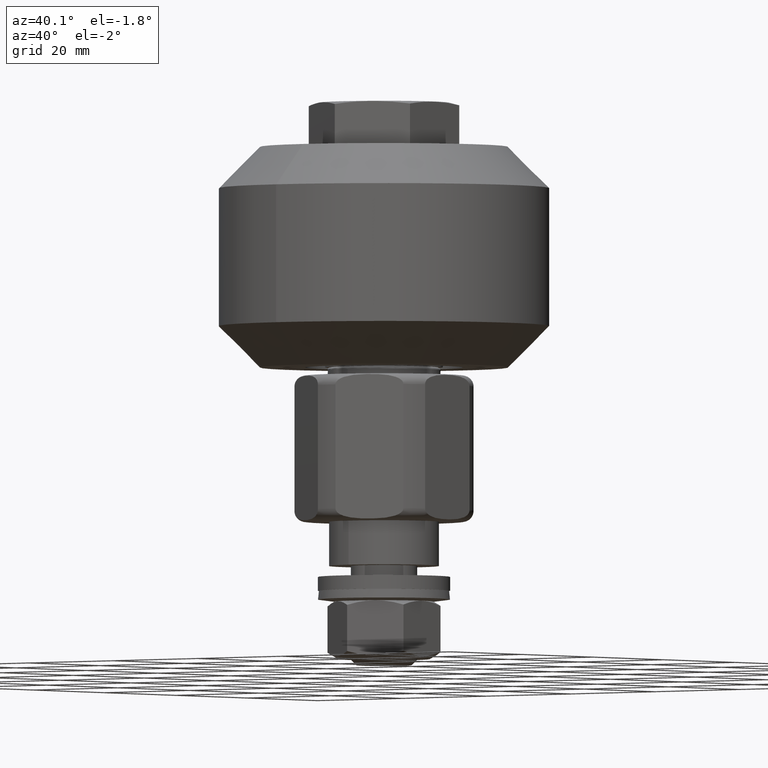
[diagram: clean part render]
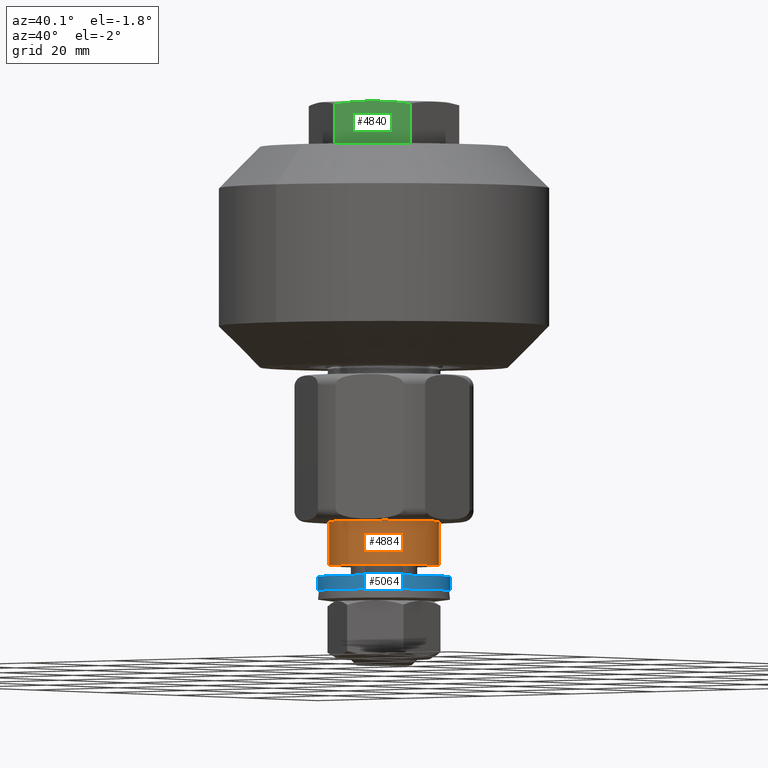
[diagram: same view with three faces highlighted in distinct colors, each labeled with its STEP entity id]
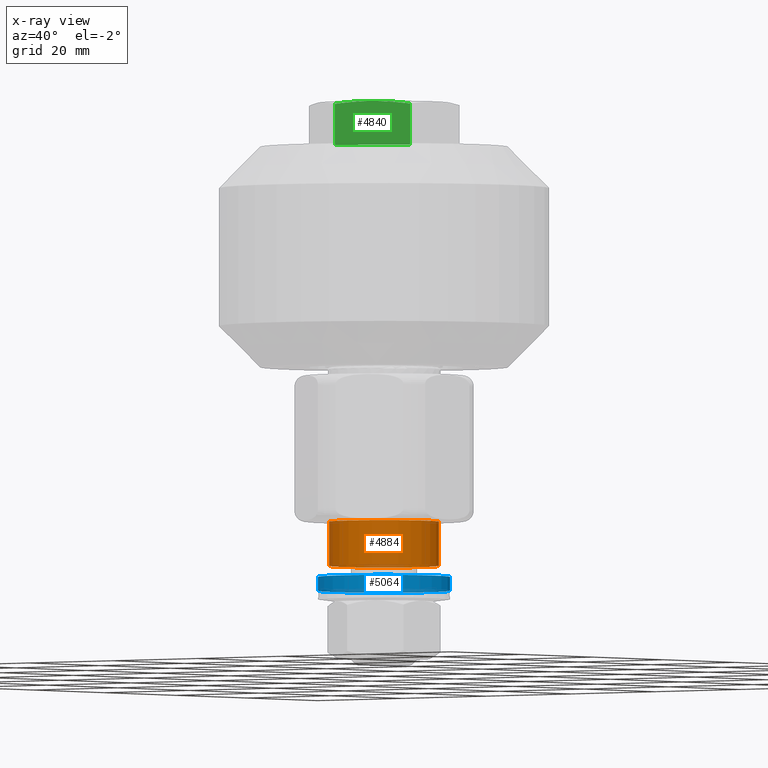
[diagram: x-ray of the same camera — body ghosted, the three highlighted faces saturated]
A machine part, auxiliary view with three faces highlighted in distinct colors.
The next image is the same camera in x-ray (body ghosted, the three faces saturated) — at least one of them is partly hidden behind the body in this view.
Their STEP definitions:

[orange] entity #4884 — the highlighted cylindrical surface (bore or boss wall) has radius 10 mm, axis along (-0, -0, -1).
#233=CYLINDRICAL_SURFACE('',#5428,10.);
#496=FACE_OUTER_BOUND('',#778,.T.);
#778=EDGE_LOOP('',(#3507,#3508,#3509,#3510));
#1069=CIRCLE('',#5423,10.);
#1070=CIRCLE('',#5429,10.);
#1329=LINE('',#7818,#1619);
#1619=VECTOR('',#6147,10.);
#2071=VERTEX_POINT('',#7809);
#2072=VERTEX_POINT('',#7816);
#2628=EDGE_CURVE('',#2071,#2071,#1069,.T.);
#2629=EDGE_CURVE('',#2072,#2072,#1070,.T.);
#2630=EDGE_CURVE('',#2072,#2071,#1329,.T.);
#3507=ORIENTED_EDGE('',*,*,#2629,.F.);
#3508=ORIENTED_EDGE('',*,*,#2630,.T.);
#3509=ORIENTED_EDGE('',*,*,#2628,.T.);
#3510=ORIENTED_EDGE('',*,*,#2630,.F.);
#4884=ADVANCED_FACE('',(#496),#233,.T.);
#5423=AXIS2_PLACEMENT_3D('',#7810,#6133,#6134);
#5428=AXIS2_PLACEMENT_3D('',#7815,#6143,#6144);
#5429=AXIS2_PLACEMENT_3D('',#7817,#6145,#6146);
#6133=DIRECTION('center_axis',(1.,0.,0.));
#6134=DIRECTION('ref_axis',(0.,1.,0.));
#6143=DIRECTION('center_axis',(1.,0.,0.));
#6144=DIRECTION('ref_axis',(0.,1.,0.));
#6145=DIRECTION('center_axis',(1.,0.,0.));
#6146=DIRECTION('ref_axis',(0.,1.,0.));
#6147=DIRECTION('',(-1.,0.,0.));
#7809=CARTESIAN_POINT('',(13.25,-10.,-1.22464679914735E-15));
#7810=CARTESIAN_POINT('Origin',(13.25,0.,0.));
#7815=CARTESIAN_POINT('Origin',(17.25,0.,0.));
#7816=CARTESIAN_POINT('',(21.25,-10.,-1.22464679914735E-15));
#7817=CARTESIAN_POINT('Origin',(21.25,0.,0.));
#7818=CARTESIAN_POINT('',(17.25,-10.,-1.22464679914735E-15));

[blue] entity #5064 — the highlighted cylindrical surface (bore or boss wall) has radius 12 mm, axis along (0, -0, 1).
#237=CYLINDRICAL_SURFACE('',#5773,12.);
#676=FACE_OUTER_BOUND('',#961,.T.);
#961=EDGE_LOOP('',(#4563,#4564,#4565,#4566));
#1225=CIRCLE('',#5774,12.);
#1226=CIRCLE('',#5775,12.);
#1569=LINE('',#9133,#1859);
#1859=VECTOR('',#7077,12.);
#2423=VERTEX_POINT('',#9130);
#2424=VERTEX_POINT('',#9132);
#3157=EDGE_CURVE('',#2423,#2423,#1225,.T.);
#3158=EDGE_CURVE('',#2423,#2424,#1569,.T.);
#3159=EDGE_CURVE('',#2424,#2424,#1226,.T.);
#4563=ORIENTED_EDGE('',*,*,#3157,.T.);
#4564=ORIENTED_EDGE('',*,*,#3158,.T.);
#4565=ORIENTED_EDGE('',*,*,#3159,.F.);
#4566=ORIENTED_EDGE('',*,*,#3158,.F.);
#5064=ADVANCED_FACE('',(#676),#237,.T.);
#5773=AXIS2_PLACEMENT_3D('',#9129,#7073,#7074);
#5774=AXIS2_PLACEMENT_3D('',#9131,#7075,#7076);
#5775=AXIS2_PLACEMENT_3D('',#9134,#7078,#7079);
#7073=DIRECTION('center_axis',(1.,0.,0.));
#7074=DIRECTION('ref_axis',(0.,-1.,0.));
#7075=DIRECTION('center_axis',(-1.,0.,0.));
#7076=DIRECTION('ref_axis',(0.,-1.,0.));
#7077=DIRECTION('',(-1.,0.,0.));
#7078=DIRECTION('center_axis',(-1.,0.,0.));
#7079=DIRECTION('ref_axis',(0.,-1.,0.));
#9129=CARTESIAN_POINT('Origin',(0.,0.,0.));
#9130=CARTESIAN_POINT('',(2.5,12.,1.46957615897682E-15));
#9131=CARTESIAN_POINT('Origin',(2.5,0.,0.));
#9132=CARTESIAN_POINT('',(0.,12.,1.46957615897682E-15));
#9133=CARTESIAN_POINT('',(0.,12.,1.46957615897682E-15));
#9134=CARTESIAN_POINT('Origin',(0.,0.,0.));

[green] entity #4840 — the highlighted planar face has unit normal (0.5, -0.866, 0).
#249=PLANE('',#5336);
#452=FACE_OUTER_BOUND('',#724,.T.);
#724=EDGE_LOOP('',(#3317,#3318,#3319,#3320));
#1292=LINE('',#7340,#1582);
#1297=LINE('',#7362,#1587);
#1298=LINE('',#7363,#1588);
#1582=VECTOR('',#5902,10.);
#1587=VECTOR('',#5929,10.);
#1588=VECTOR('',#5930,10.);
#1866=(
BOUNDED_CURVE()
B_SPLINE_CURVE(2,(#7303,#7304,#7305),.UNSPECIFIED.,.F.,.F.)
B_SPLINE_CURVE_WITH_KNOTS((3,3),(0.,1.38920738919512),.UNSPECIFIED.)
CURVE()
GEOMETRIC_REPRESENTATION_ITEM()
RATIONAL_B_SPLINE_CURVE((1.,1.15470053837925,1.))
REPRESENTATION_ITEM('')
);
#1998=VERTEX_POINT('',#7301);
#1999=VERTEX_POINT('',#7302);
#2008=VERTEX_POINT('',#7339);
#2014=VERTEX_POINT('',#7361);
#2515=EDGE_CURVE('',#1998,#1999,#1866,.T.);
#2528=EDGE_CURVE('',#2008,#1998,#1292,.T.);
#2538=EDGE_CURVE('',#2014,#1999,#1297,.T.);
#2539=EDGE_CURVE('',#2008,#2014,#1298,.T.);
#3317=ORIENTED_EDGE('',*,*,#2515,.T.);
#3318=ORIENTED_EDGE('',*,*,#2538,.F.);
#3319=ORIENTED_EDGE('',*,*,#2539,.F.);
#3320=ORIENTED_EDGE('',*,*,#2528,.T.);
#4840=ADVANCED_FACE('',(#452),#249,.T.);
#5336=AXIS2_PLACEMENT_3D('',#7360,#5927,#5928);
#5902=DIRECTION('',(0.,0.,1.));
#5927=DIRECTION('center_axis',(0.5,-0.866025403784439,0.));
#5928=DIRECTION('ref_axis',(0.866025403784439,0.5,0.));
#5929=DIRECTION('',(0.,0.,1.));
#5930=DIRECTION('',(-0.866025403784439,-0.5,0.));
#7301=CARTESIAN_POINT('',(12.,-6.92820323027551,7.46410161513776));
#7302=CARTESIAN_POINT('',(-4.44089209850063E-15,-13.856406460551,7.46410161513776));
#7303=CARTESIAN_POINT('Ctrl Pts',(12.,-6.92820323027551,7.46410161513776));
#7304=CARTESIAN_POINT('Ctrl Pts',(6.,-10.3923048454133,8.39230484541327));
#7305=CARTESIAN_POINT('Ctrl Pts',(-7.17947190217064E-15,-13.856406460551,
7.46410161513776));
#7339=CARTESIAN_POINT('',(12.,-6.92820323027551,0.));
#7340=CARTESIAN_POINT('',(12.,-6.92820323027551,0.));
#7360=CARTESIAN_POINT('Origin',(-8.88178419700125E-15,-13.856406460551,
0.));
#7361=CARTESIAN_POINT('',(-5.82867087928207E-15,-13.856406460551,0.));
#7362=CARTESIAN_POINT('',(-5.82867087928207E-15,-13.856406460551,0.));
#7363=CARTESIAN_POINT('',(12.,-6.92820323027551,0.));